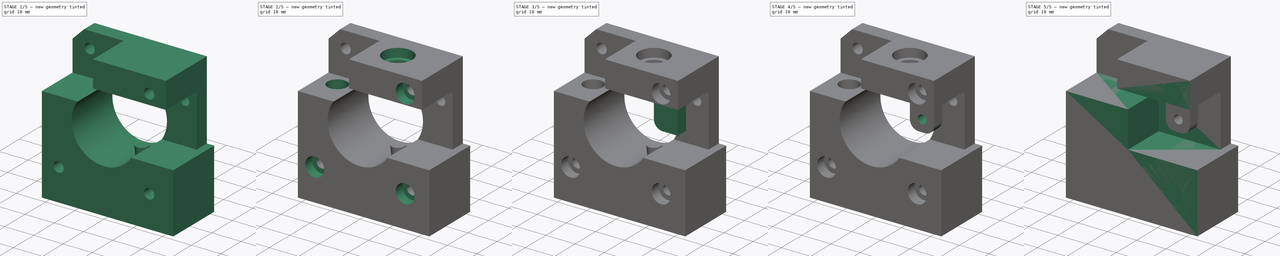
[diagram: build sequence overview — one tinted view per stage of 5, left to right]
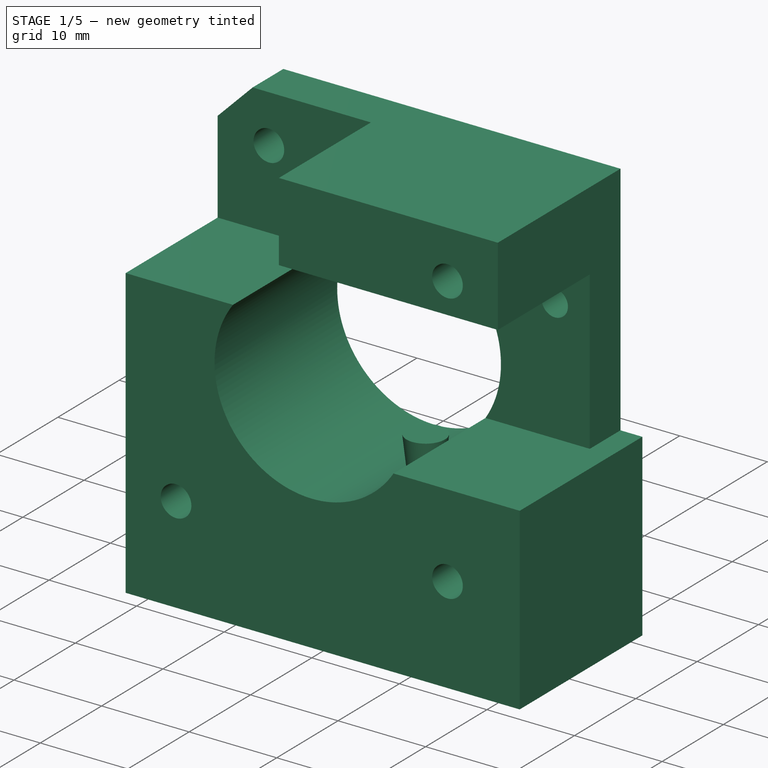
[diagram: stage 1 of 5 — iso view after this stage's code; geometry added in this stage tinted green]
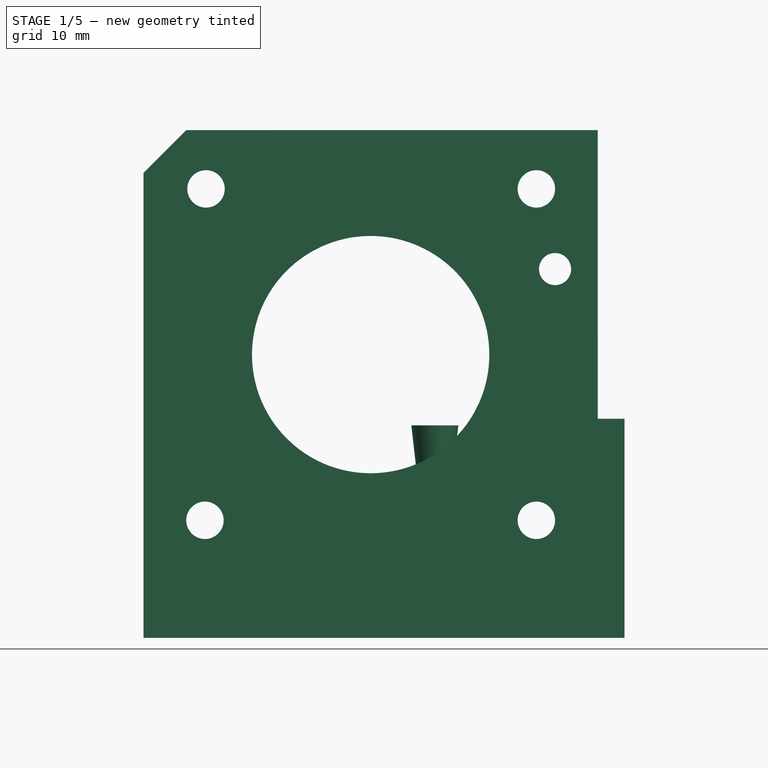
[diagram: stage 1 of 5 — front view after this stage's code; geometry added in this stage tinted green]
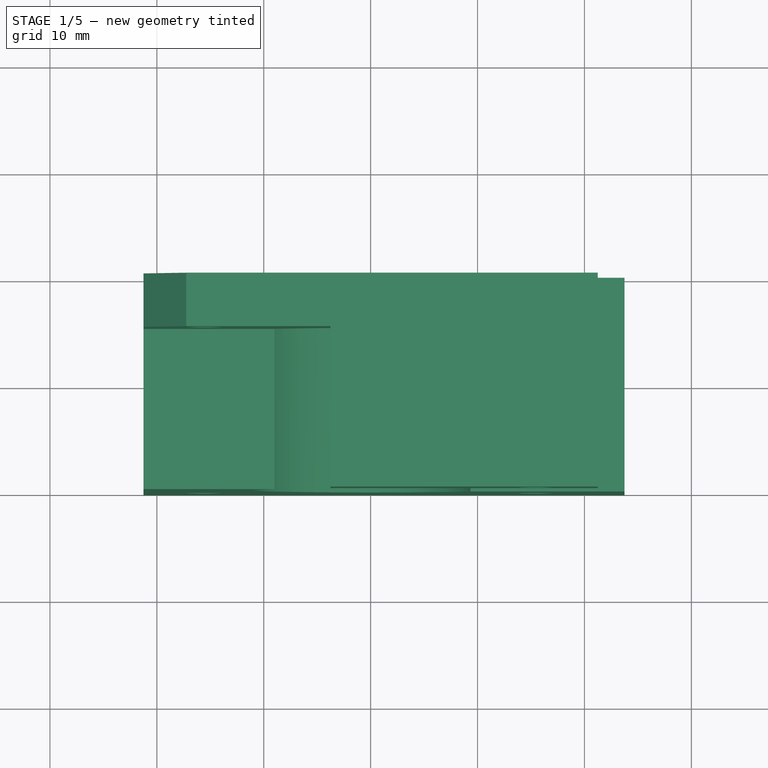
[diagram: stage 1 of 5 — top view after this stage's code; geometry added in this stage tinted green]
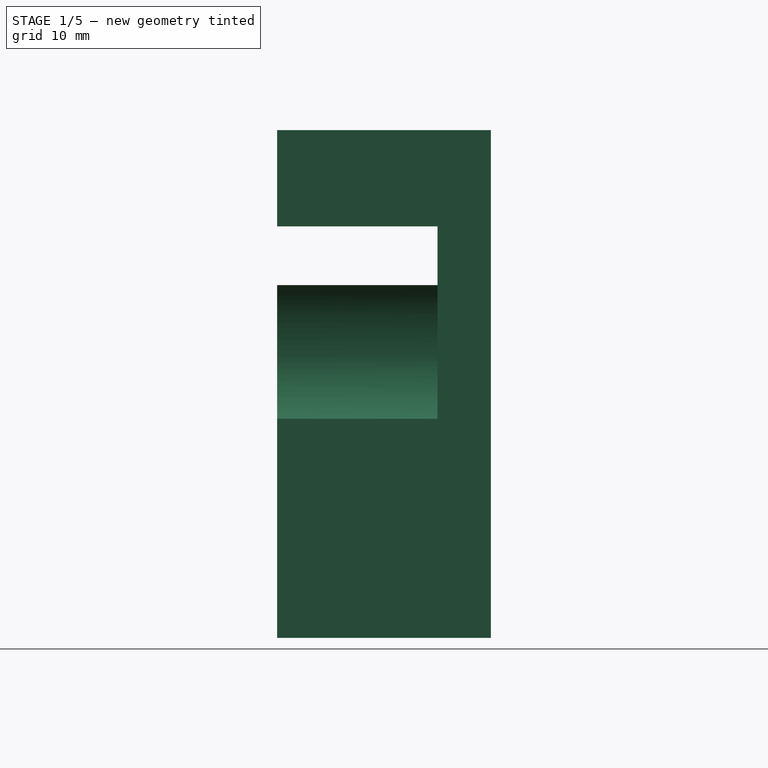
[diagram: stage 1 of 5 — right view after this stage's code; geometry added in this stage tinted green]
FCSTD DOCUMENT  (FreeCAD 0.15R4669 (Git))
Label: Extruder-body
License: CC-BY 3.0
LicenseURL: http://creativecommons.org/licenses/by/3.0/
objects: Sketcher::SketchObject×14, PartDesign::Pocket×13, PartDesign::Pad×2, PartDesign::Fillet×2, Part::Feature×1, Part::Cone×1, Part::Cut×1
note: 49 computed .brp shape members not serialized (recipe doc carries the construction recipe); baked Part::Feature solids carry a one-line shape summary decoded from their .brp

FEATURE [PartDesign::Pocket] Pocket002  label="cutout-3-motor-shaft"
  Length = 5
  Placement = pos=(0,0,0) rot=(1,0,0;1.5708rad)
  Type = 1
FEATURE [Sketcher::SketchObject] Sketch004  label="drill-lever-sketch"
  Placement = pos=(0,0,0) rot=(-1,0,0;1.5708rad)
  Support = -> Pocket002 [Face4]
  sketch-geometry (1):
    g0: Circle CenterX=17.25 CenterY=-34.5 CenterZ=0 NormalX=0 NormalY=0 NormalZ=1 Radius=1.5
  constraints (3):
    c: DistanceX(g-1,g0) = 17.25
    c: DistanceY(g-1,g0) = -34.5
    c: Radius(g0) = 1.5
FEATURE [PartDesign::Pocket] Pocket003  label="drill-lever"
  Length = 5
  Placement = pos=(0,0,0) rot=(1,0,0;1.5708rad)
  Sketch = -> Sketch004
  Type = 1
FEATURE [Sketcher::SketchObject] Sketch005  label="motor-drills-sketch"
  Placement = pos=(0,0,0) rot=(-1,0,0;1.5708rad)
  Support = -> Pocket003 [Face4]
  sketch-geometry (4):
    g0: Circle CenterX=-15.5 CenterY=-11 CenterZ=0 NormalX=0 NormalY=0 NormalZ=1 Radius=1.75
    g1: Circle CenterX=15.5 CenterY=-11 CenterZ=0 NormalX=0 NormalY=0 NormalZ=1 Radius=1.75
    g2: Circle CenterX=15.5 CenterY=-42 CenterZ=0 NormalX=0 NormalY=0 NormalZ=1 Radius=1.75
    g3: Circle CenterX=-15.4 CenterY=-42 CenterZ=0 NormalX=0 NormalY=0 NormalZ=1 Radius=1.75
  constraints (7):
    c: DistanceY(g-1,g0) = -11
    c: Equal(g1,g0)
    c: Symmetric(g1,g0,g-2)
    c: DistanceX(g0,g1) = 31
    c: Radius(g0) = 1.75
    c: Radius(g2) = 1.75
    c: Radius(g3) = 1.75
FEATURE [PartDesign::Pocket] Pocket004  label="motor-drills"
  Length = 5
  Placement = pos=(0,0,0) rot=(1,0,0;1.5708rad)
  Sketch = -> Sketch005
  Type = 1
FEATURE [Part::Feature] Fusion001  label="hotend final001"
  Placement = pos=(6.00997,-9.96459,9) rot=(1,0,0;3.14159rad)
  shape: bbox 25 x 25 x 75.51 mm, 79 faces (baked)
FEATURE [Part::Cone] Cone  label="Cono"
  Angle = 360
  Height = 10.765
  Placement = pos=(6.00217,-9.99368,9.11824) rot=(0,0,1;0rad)
  Radius1 = 0.975
  Radius2 = 2.2
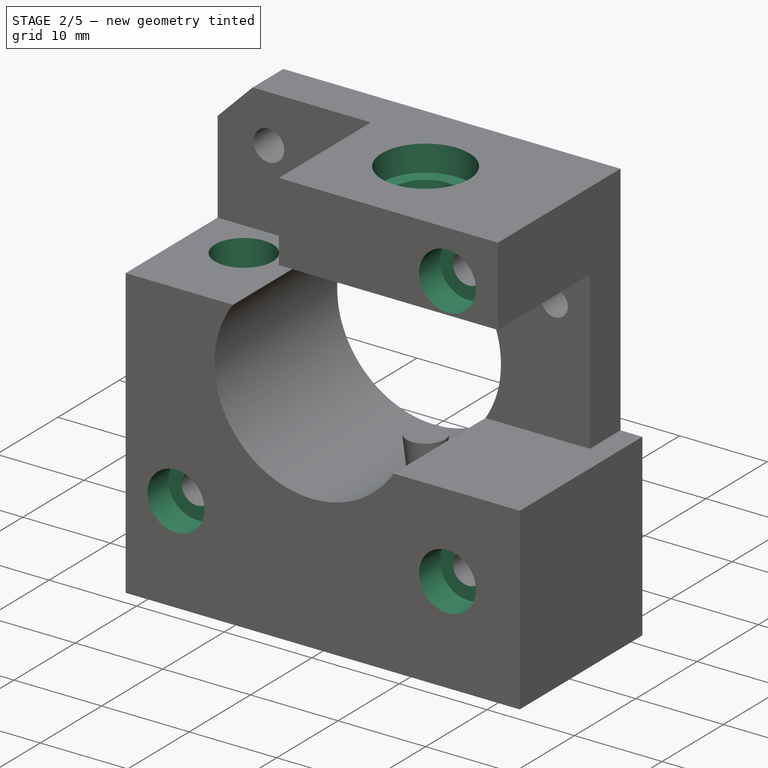
[diagram: stage 2 of 5 — iso view after this stage's code; geometry added in this stage tinted green]
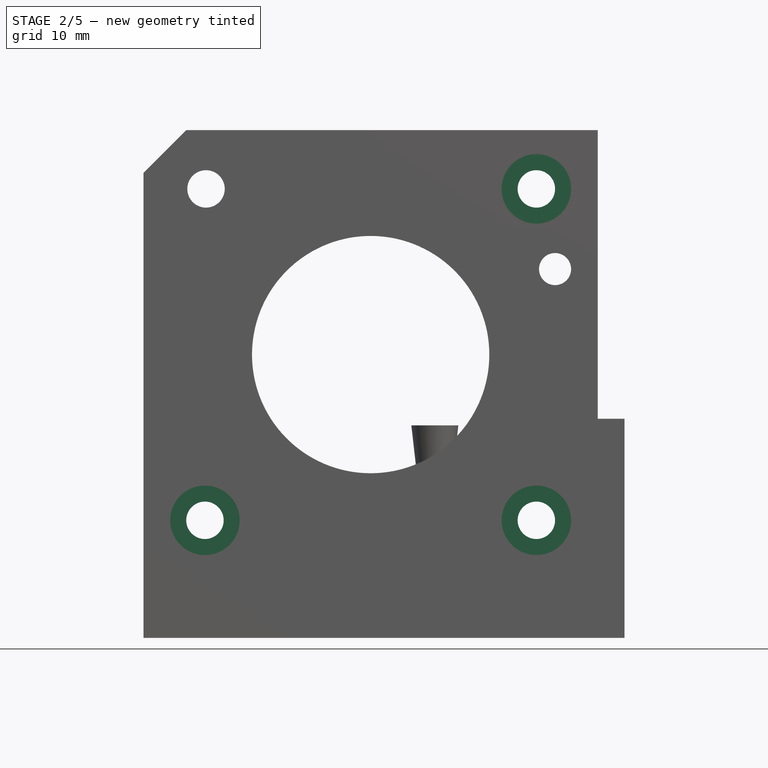
[diagram: stage 2 of 5 — front view after this stage's code; geometry added in this stage tinted green]
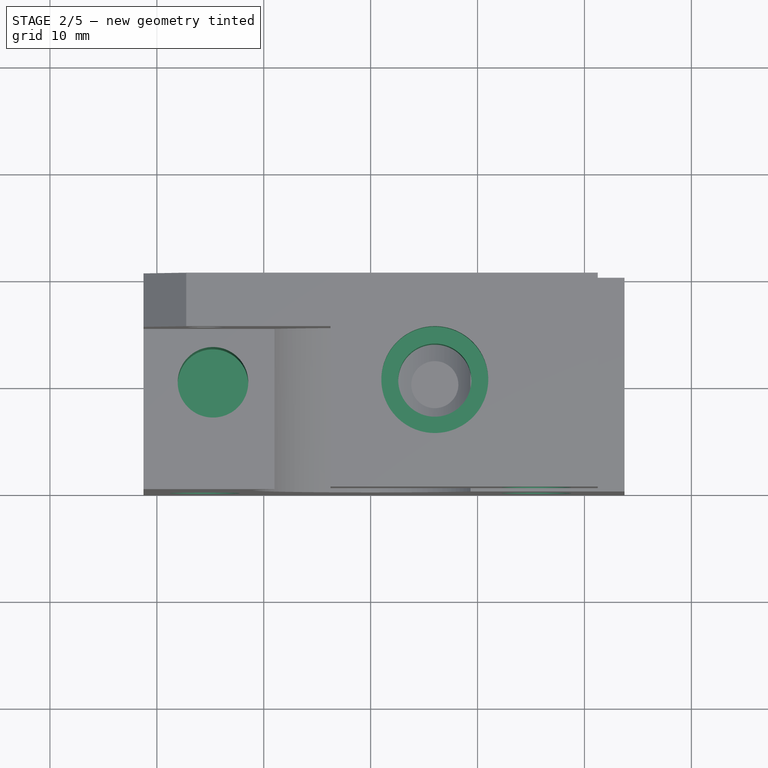
[diagram: stage 2 of 5 — top view after this stage's code; geometry added in this stage tinted green]
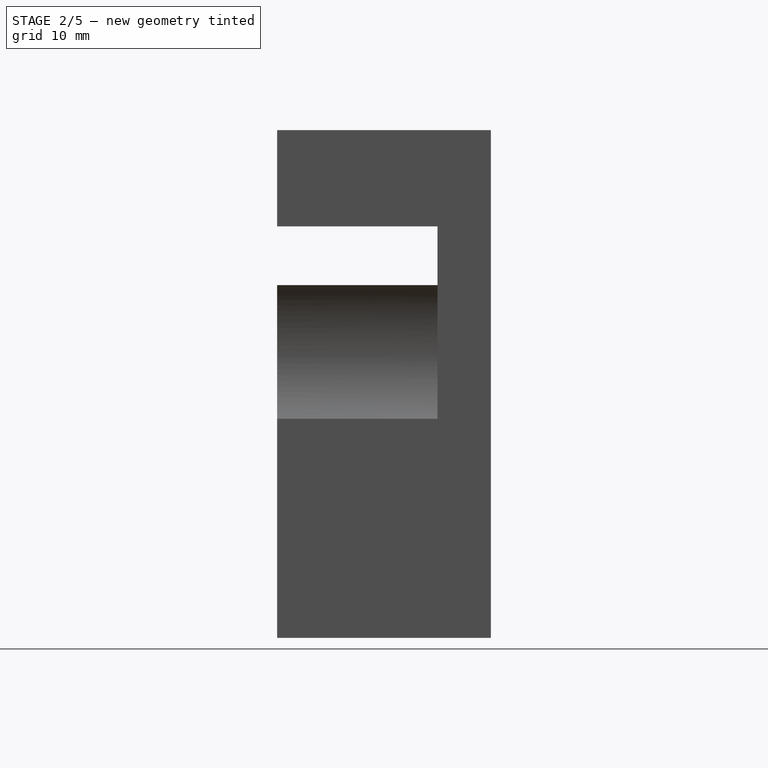
[diagram: stage 2 of 5 — right view after this stage's code; geometry added in this stage tinted green]
FEATURE [Sketcher::SketchObject] Sketch006  label="motor-drills-2-sketch"
  Placement = pos=(0,-20,0) rot=(1,0,0;1.5708rad)
  Support = -> Pocket004 [Face5]
  sketch-geometry (3):
    g0: Circle CenterX=-15.5 CenterY=11 CenterZ=0 NormalX=0 NormalY=0 NormalZ=1 Radius=3.25
    g1: Circle CenterX=15.5 CenterY=11 CenterZ=0 NormalX=0 NormalY=0 NormalZ=1 Radius=3.25
    g2: Circle CenterX=15.4996 CenterY=42 CenterZ=0 NormalX=0 NormalY=0 NormalZ=1 Radius=3.25
  constraints (4):
    c: Equal(g1,g0)
    c: Symmetric(g0,g1,g-2)
    c: Radius(g0) = 3.25
    c: Radius(g2) = 3.25
FEATURE [PartDesign::Pocket] Pocket005  label="motor-drills-2"
  Length = 3.4
  Placement = pos=(0,0,0) rot=(1,0,0;1.5708rad)
  Sketch = -> Sketch006
  Type = 0
FEATURE [Sketcher::SketchObject] Sketch010  label="drill-spring-sketch"
  Placement = pos=(0,0,33) rot=(0,0,1;3.14159rad)
  Support = -> Pocket005 [Face9]
  sketch-geometry (1):
    g0: Circle CenterX=14.75 CenterY=10 CenterZ=0 NormalX=0 NormalY=0 NormalZ=1 Radius=3.3
  constraints (3):
    c: Radius(g0) = 3.3
    c: DistanceX(g-1,g0) = 14.75
    c: DistanceY(g-1,g0) = 10
FEATURE [PartDesign::Pocket] Pocket006  label="drill spring "
  Length = 12.5
  Placement = pos=(0,0,0) rot=(1,0,0;1.5708rad)
  Sketch = -> Sketch010
  Type = 0
FEATURE [Sketcher::SketchObject] Sketch008  label="top-drill-1-sketch"
  Placement = pos=(0,0,47.5) rot=(0,0,1;3.14159rad)
  Support = -> Pocket006 [Face11]
  sketch-geometry (1):
    g0: Circle CenterX=-6 CenterY=10 CenterZ=0 NormalX=0 NormalY=0 NormalZ=1 Radius=5
  constraints (3):
    c: Radius(g0) = 5
    c: DistanceY(g-1,g0) = 10
    c: DistanceX(g-1,g0) = -6
FEATURE [PartDesign::Pocket] Pocket007  label="top drill 1"
  Length = 3
  Placement = pos=(0,0,0) rot=(1,0,0;1.5708rad)
  Sketch = -> Sketch008
  Type = 0
FEATURE [Sketcher::SketchObject] Sketch013
  Placement = pos=(0,0,44.5) rot=(0,0,1;3.14159rad)
  Support = -> Pocket007 [Face30]
  sketch-geometry (1):
    g0: Circle CenterX=-6 CenterY=10 CenterZ=0 NormalX=0 NormalY=0 NormalZ=1 Radius=3.42075
  constraints (2):
    c: DistanceX(g-2,g0) = -6
    c: DistanceY(g-1,g0) = 10
FEATURE [PartDesign::Pocket] Pocket008  label="top drill 2"
  Length = 5
  Placement = pos=(0,0,0) rot=(1,0,0;1.5708rad)
  Sketch = -> Sketch013
  Type = 2
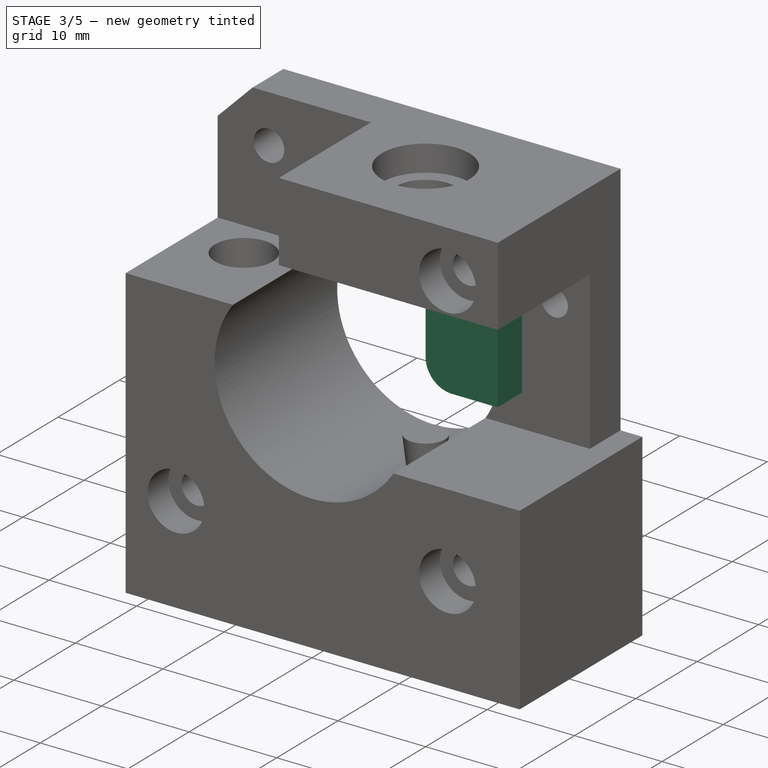
[diagram: stage 3 of 5 — iso view after this stage's code; geometry added in this stage tinted green]
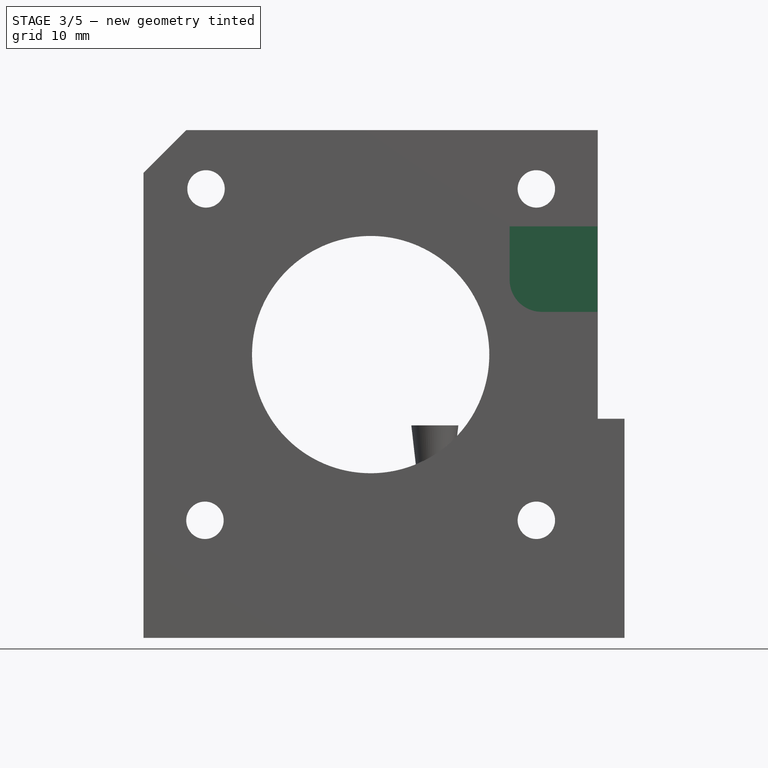
[diagram: stage 3 of 5 — front view after this stage's code; geometry added in this stage tinted green]
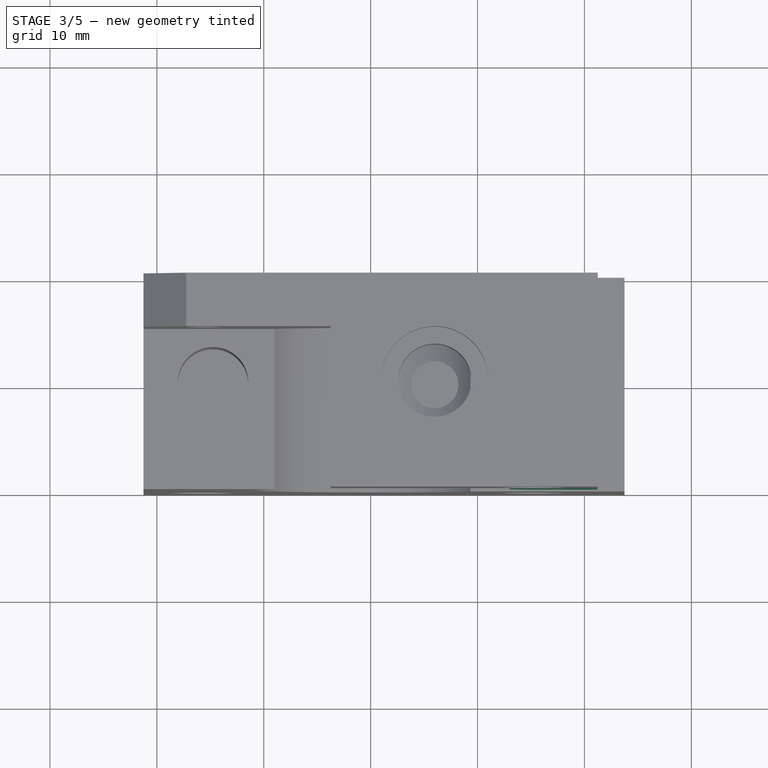
[diagram: stage 3 of 5 — top view after this stage's code; geometry added in this stage tinted green]
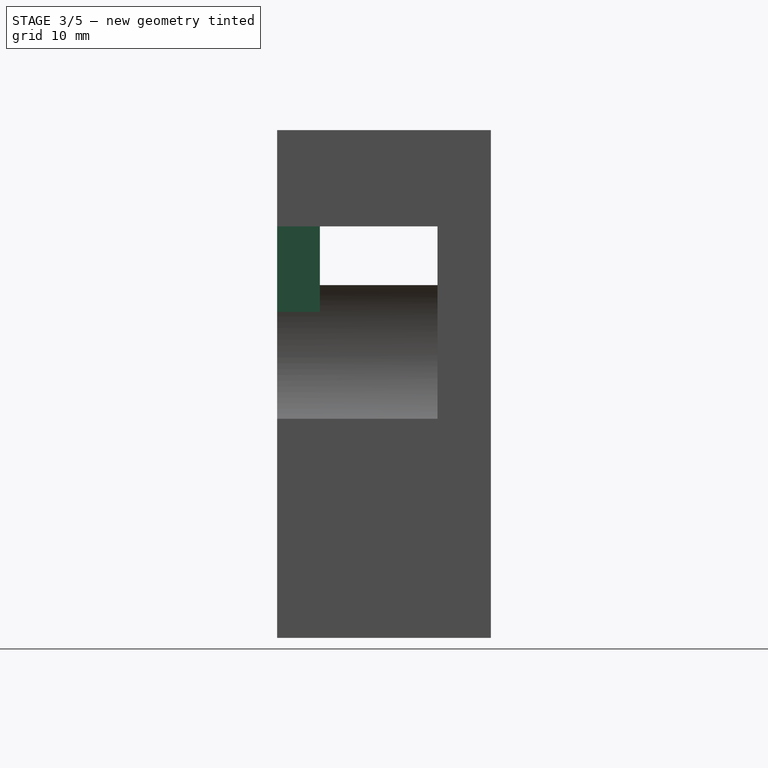
[diagram: stage 3 of 5 — right view after this stage's code; geometry added in this stage tinted green]
FEATURE [Sketcher::SketchObject] Sketch011  label="hotend-drill-sketch"
  Placement = pos=(0,0,0) rot=(1,0,0;3.14159rad)
  Support = -> Pocket008 [Face1]
  sketch-geometry (1):
    g0: Circle CenterX=6 CenterY=10 CenterZ=0 NormalX=0 NormalY=0 NormalZ=1 Radius=0.975
  constraints (3):
    c: Radius(g0) = 0.975
    c: DistanceY(g-1,g0) = 10
    c: DistanceX(g-1,g0) = 6
FEATURE [PartDesign::Pocket] Pocket009  label="hotend-drill"
  Length = 5
  Placement = pos=(0,0,0) rot=(1,0,0;1.5708rad)
  Sketch = -> Sketch011
  Type = 2
FEATURE [Sketcher::SketchObject] Sketch014
  Placement = pos=(0,0,38.5) rot=(1,0,0;3.14159rad)
  Support = -> Pocket009 [Face22]
  sketch-geometry (4):
    g0: LineSegment StartX=13 StartY=20 StartZ=0 EndX=21.2131 EndY=20 EndZ=0
    g1: LineSegment StartX=21.2131 StartY=20 StartZ=0 EndX=21.2131 EndY=16 EndZ=0
    g2: LineSegment StartX=21.2131 StartY=16 StartZ=0 EndX=13 EndY=16 EndZ=0
    g3: LineSegment StartX=13 StartY=16 StartZ=0 EndX=13 EndY=20 EndZ=0
  constraints (8):
    c: Coincident(g0,g1)
    c: Coincident(g1,g2)
    c: Coincident(g2,g3)
    c: Coincident(g3,g0)
    c: Horizontal(g0)
    c: Horizontal(g2)
    c: Vertical(g1)
    c: Vertical(g3)
FEATURE [PartDesign::Pad] Pad001  label="lever-support"
  Length = 8
  Length2 = 100
  Placement = pos=(0,0,0) rot=(1,0,0;1.5708rad)
  Sketch = -> Sketch014
  Type = 0
FEATURE [PartDesign::Fillet] Fillet
  Base = -> Pad001 [Edge4]
  Placement = pos=(0,0,0) rot=(1,0,0;1.5708rad)
  Radius = 3
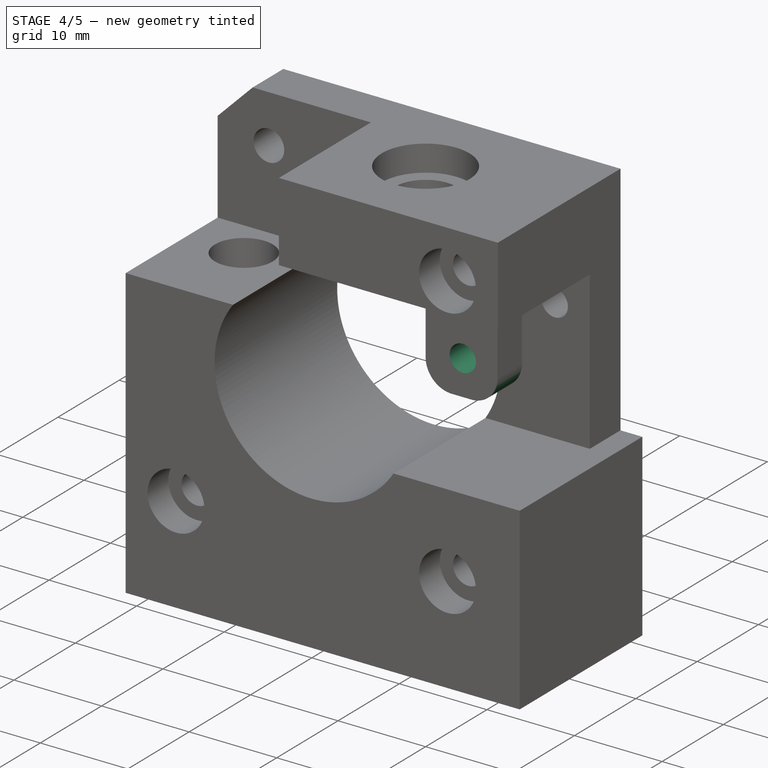
[diagram: stage 4 of 5 — iso view after this stage's code; geometry added in this stage tinted green]
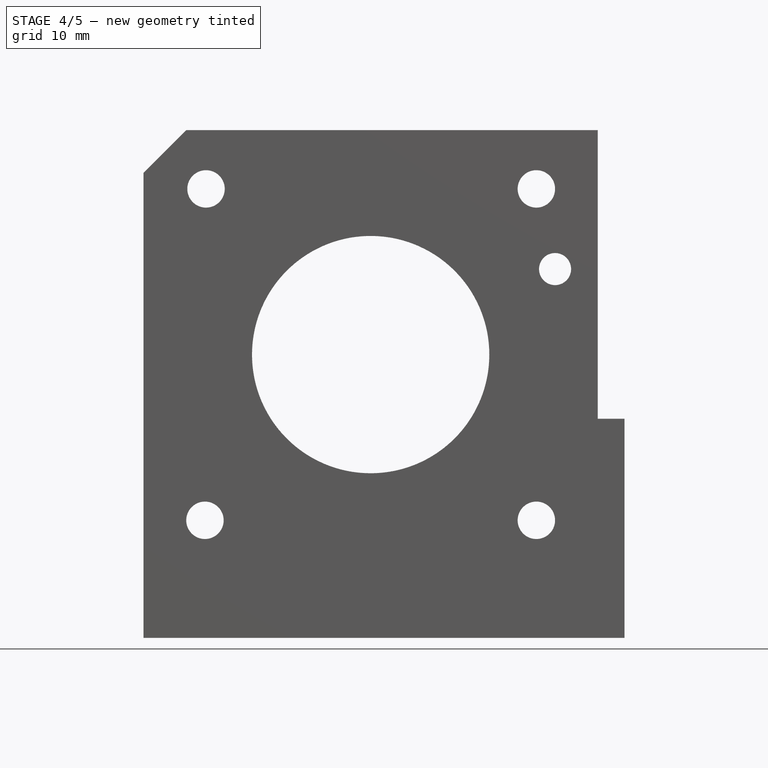
[diagram: stage 4 of 5 — front view after this stage's code; geometry added in this stage tinted green]
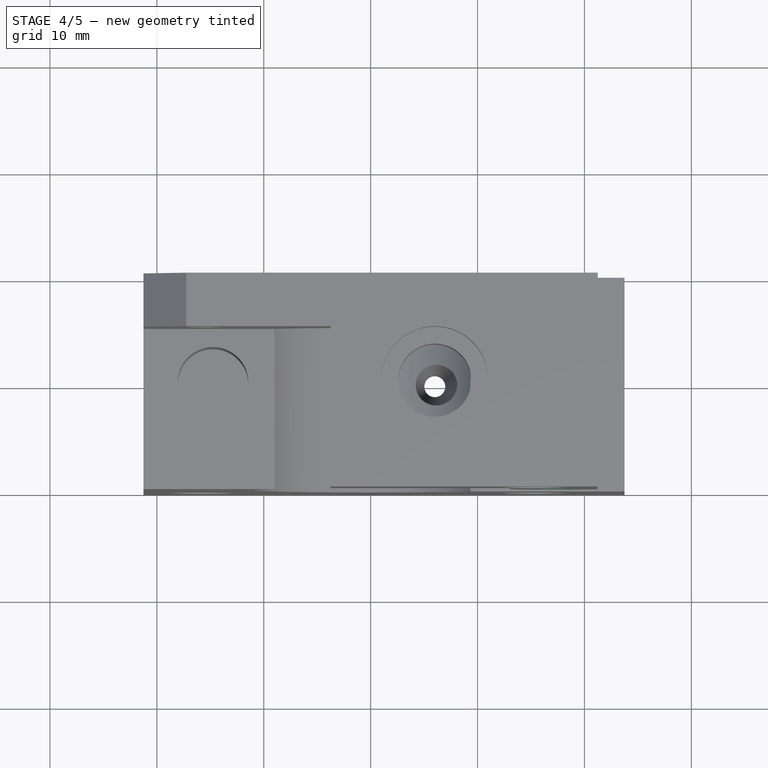
[diagram: stage 4 of 5 — top view after this stage's code; geometry added in this stage tinted green]
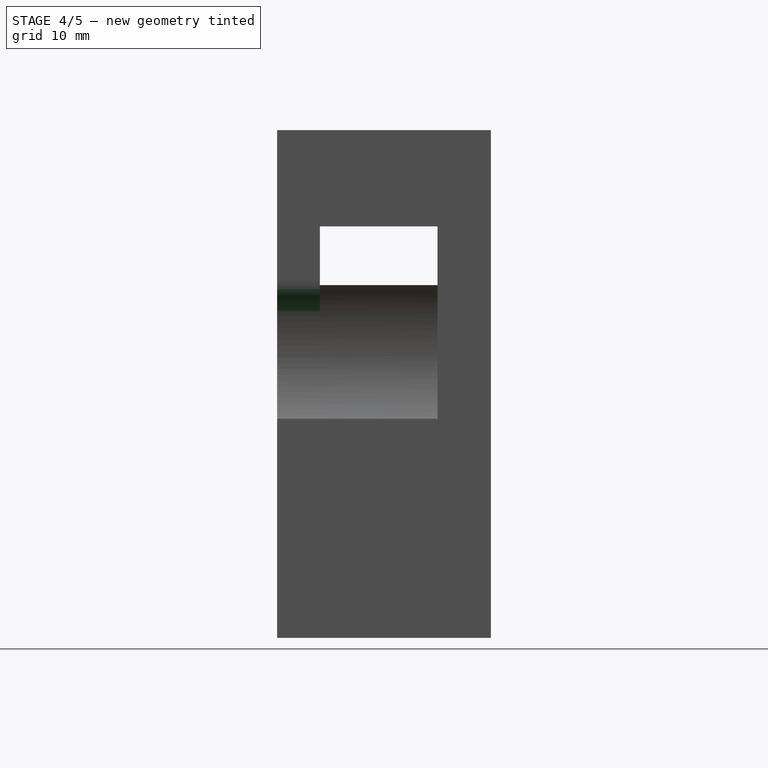
[diagram: stage 4 of 5 — right view after this stage's code; geometry added in this stage tinted green]
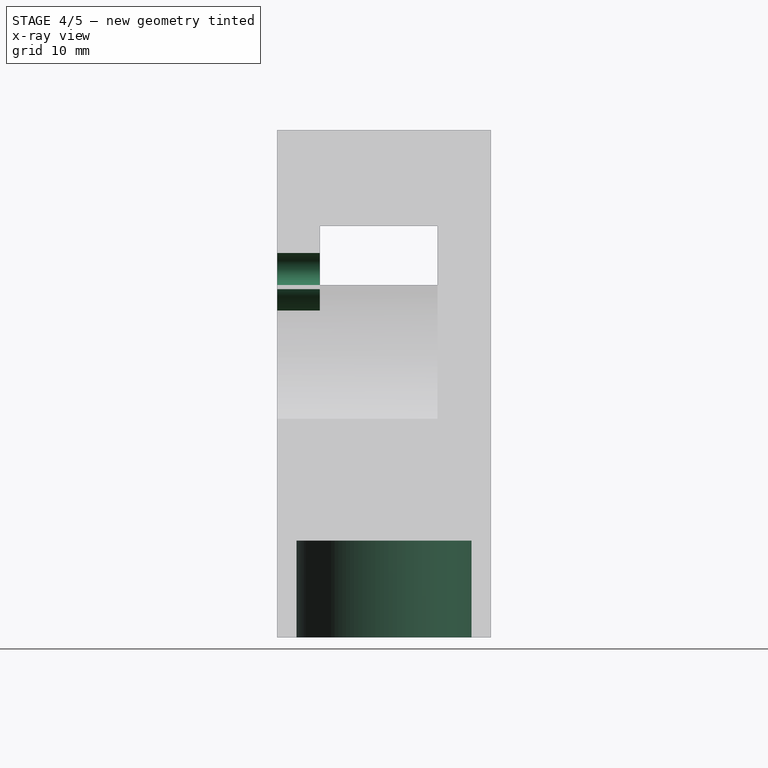
[diagram: stage 4 of 5 — x-ray composite at the right view; earlier geometry ghosted, this stage's added geometry solid]
FEATURE [PartDesign::Fillet] Fillet001
  Base = -> Fillet [Edge3]
  Placement = pos=(0,0,0) rot=(1,0,0;1.5708rad)
  Radius = 3
FEATURE [Sketcher::SketchObject] Sketch015  label="drill-lever-sketch001"
  Placement = pos=(0,-20,0) rot=(1,0,0;1.5708rad)
  Support = -> Fillet001 [Face2]
  sketch-geometry (1):
    g0: Circle CenterX=17.25 CenterY=34.5 CenterZ=0 NormalX=0 NormalY=0 NormalZ=1 Radius=1.5
  constraints (3):
    c: DistanceX(g-1,g0) = 17.25
    c: DistanceY(g-1,g0) = 34.5
    c: Radius(g0) = 1.5
FEATURE [PartDesign::Pocket] Pocket010  label="lever-support-drill"
  Length = 5
  Placement = pos=(0,0,0) rot=(1,0,0;1.5708rad)
  Sketch = -> Sketch015
  Type = 2
FEATURE [Part::Cut] Cut
  Base = -> Pocket010
  Tool = -> Cone
FEATURE [Sketcher::SketchObject] Sketch016
  Placement = pos=(0,0,0) rot=(1,0,0;3.14159rad)
  Support = -> Cut [Face28]
  sketch-geometry (1):
    g0: Circle CenterX=6 CenterY=10 CenterZ=0 NormalX=0 NormalY=0 NormalZ=1 Radius=8.2
  constraints (3):
    c: Radius(g0) = 8.2
    c: DistanceY(g-1,g0) = 10
    c: DistanceX(g-2,g0) = 6
FEATURE [PartDesign::Pocket] Pocket011
  Length = 9.1
  Sketch = -> Sketch016
  Type = 0
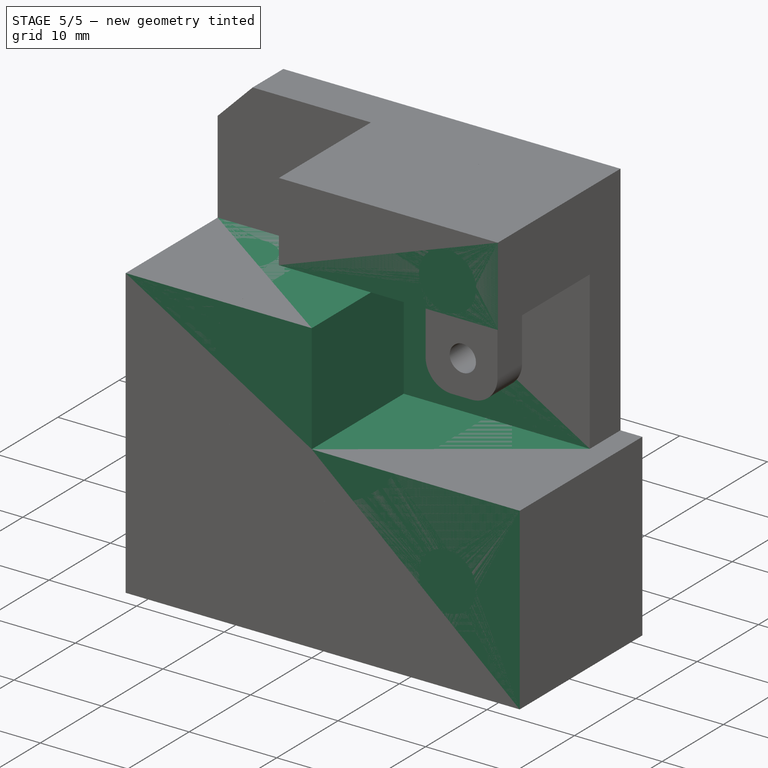
[diagram: stage 5 of 5 — iso view after this stage's code; geometry added in this stage tinted green]
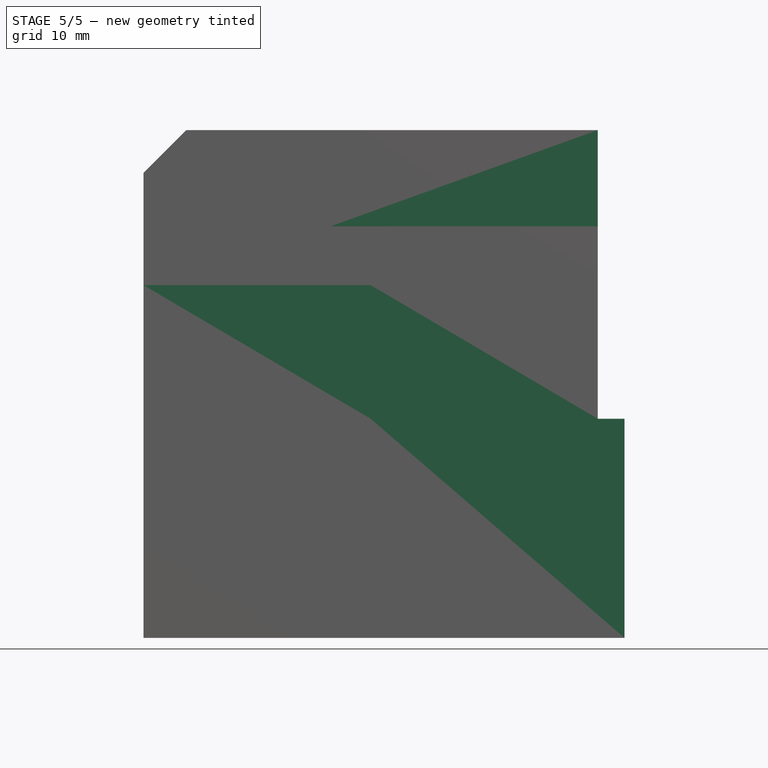
[diagram: stage 5 of 5 — front view after this stage's code; geometry added in this stage tinted green]
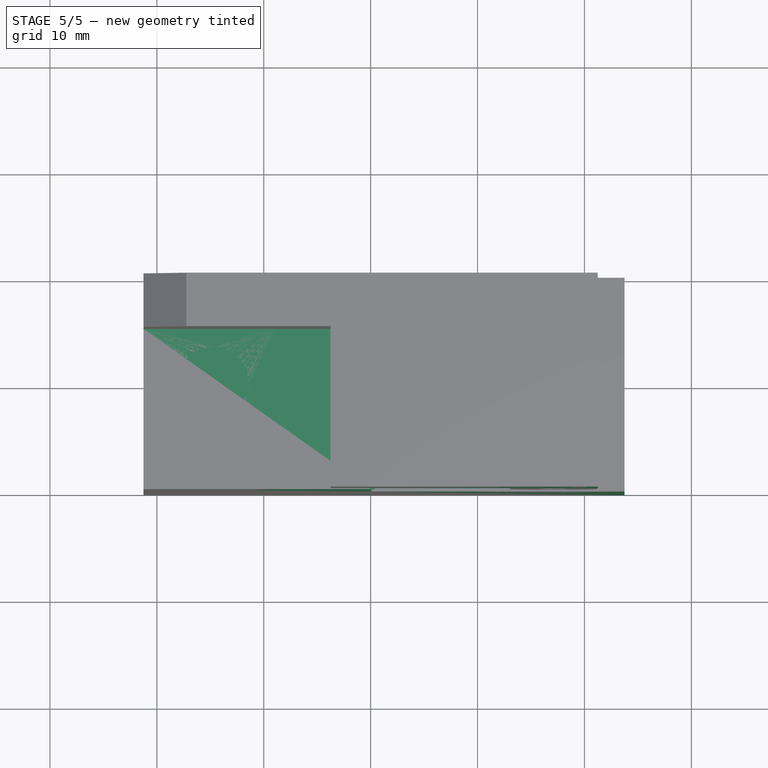
[diagram: stage 5 of 5 — top view after this stage's code; geometry added in this stage tinted green]
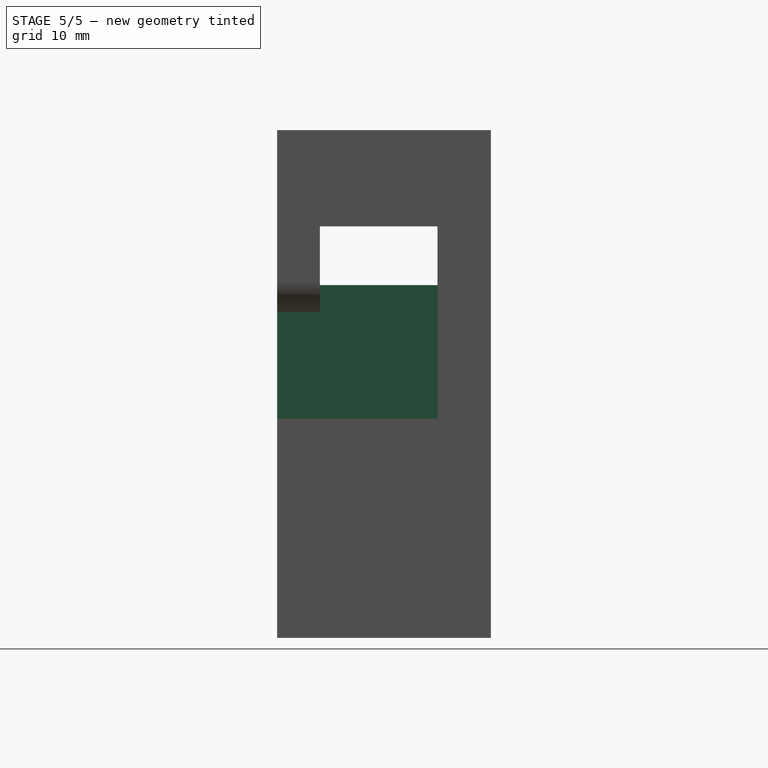
[diagram: stage 5 of 5 — right view after this stage's code; geometry added in this stage tinted green]
FEATURE [Sketcher::SketchObject] Sketch  label="main-body-sketch"
  Placement = pos=(0,0,0) rot=(1,0,0;1.5708rad)
  sketch-geometry (6):
    g0: LineSegment StartX=23.7483 StartY=0 StartZ=0 EndX=-21.2517 EndY=0 EndZ=0
    g1: LineSegment StartX=-21.2517 StartY=0 StartZ=0 EndX=-21.2517 EndY=43.5 EndZ=0
    g2: LineSegment StartX=-21.2517 StartY=43.5 StartZ=0 EndX=-17.2517 EndY=47.5 EndZ=0
    g3: LineSegment StartX=-17.2517 StartY=47.5 StartZ=0 EndX=23.7483 EndY=47.5 EndZ=0
    g4: LineSegment StartX=23.7483 StartY=47.5 StartZ=0 EndX=23.7483 EndY=0 EndZ=0
    g5: LineSegment [constr] StartX=-21.2517 StartY=43.5 StartZ=0 EndX=-17.2517 EndY=43.5 EndZ=0
  constraints (17):
    c: Horizontal(g0)
    c: Coincident(g0,g1)
    c: Vertical(g1)
    c: Coincident(g1,g2)
    c: Coincident(g2,g3)
    c: Horizontal(g3)
    c: Coincident(g3,g4)
    c: Coincident(g4,g0)
    c: Vertical(g4)
    c: PointOnObject(g0,g-1)
    c: Horizontal(g5)
    c: Coincident(g5,g1)
    c: DistanceX(g5) = 4
    c: Angle(g5,g2) = 0.785398
    c: DistanceY(g5,g2) = 4
    c: DistanceY(g2,g0) = -47.5
    c: DistanceX(g0) = -45
FEATURE [PartDesign::Pad] Pad  label="main-body"
  Length = 20
  Length2 = 100
  Placement = pos=(0,0,0) rot=(1,0,0;1.5708rad)
  Sketch = -> Sketch
  Type = 0
FEATURE [Sketcher::SketchObject] Sketch001  label="cutout-1-sketch"
  ExternalGeometry = -> [Pad]
  Placement = pos=(0,-20,0) rot=(1,0,0;1.5708rad)
  Support = -> Pad [Face7]
  sketch-geometry (4):
    g0: LineSegment StartX=21.2483 StartY=47.5 StartZ=0 EndX=23.7483 EndY=47.5 EndZ=0
    g1: LineSegment StartX=23.7483 StartY=47.5 StartZ=0 EndX=23.7483 EndY=20.5 EndZ=0
    g2: LineSegment StartX=23.7483 StartY=20.5 StartZ=0 EndX=21.2483 EndY=20.5 EndZ=0
    g3: LineSegment StartX=21.2483 StartY=20.5 StartZ=0 EndX=21.2483 EndY=47.5 EndZ=0
  constraints (11):
    c: Coincident(g0,g1)
    c: Coincident(g1,g2)
    c: Coincident(g2,g3)
    c: Coincident(g3,g0)
    c: Horizontal(g0)
    c: Horizontal(g2)
    c: Vertical(g1)
    c: Vertical(g3)
    c: Coincident(g0,g-4)
    c: DistanceY(g3) = 27
    c: DistanceX(g2) = -2.5
FEATURE [PartDesign::Pocket] Pocket  label="cutout-1"
  Length = 5
  Placement = pos=(0,0,0) rot=(1,0,0;1.5708rad)
  Sketch = -> Sketch001
  Type = 1
FEATURE [Sketcher::SketchObject] Sketch002  label="cutout-2-sketch"
  ExternalGeometry = -> [Pocket]
  Placement = pos=(0,-20,0) rot=(1,0,0;1.5708rad)
  Support = -> Pocket [Face5]
  sketch-geometry (8):
    g0: LineSegment StartX=21.2483 StartY=20.5 StartZ=0 EndX=0 EndY=20.5 EndZ=0
    g1: LineSegment StartX=0 StartY=20.5 StartZ=0 EndX=0 EndY=33 EndZ=0
    g2: LineSegment StartX=0 StartY=33 StartZ=0 EndX=-21.2517 EndY=33 EndZ=0
    g3: LineSegment StartX=-21.2517 StartY=33 StartZ=0 EndX=-21.2517 EndY=47.5 EndZ=0
    g4: LineSegment StartX=-21.2517 StartY=47.5 StartZ=0 EndX=-3.75167 EndY=47.5 EndZ=0
    g5: LineSegment StartX=-3.75167 StartY=47.5 StartZ=0 EndX=-3.75167 EndY=38.5 EndZ=0
    g6: LineSegment StartX=-3.75167 StartY=38.5 StartZ=0 EndX=21.2483 EndY=38.5 EndZ=0
    g7: LineSegment StartX=21.2483 StartY=38.5 StartZ=0 EndX=21.2483 EndY=20.5 EndZ=0
  constraints (23):
    c: Horizontal(g0)
    c: Coincident(g0,g1)
    c: Vertical(g1)
    c: Coincident(g1,g2)
    c: Horizontal(g2)
    c: Coincident(g2,g3)
    c: Vertical(g3)
    c: Coincident(g3,g4)
    c: Horizontal(g4)
    c: Coincident(g4,g5)
    c: Vertical(g5)
    c: Coincident(g5,g6)
    c: Horizontal(g6)
    c: Coincident(g6,g7)
    c: Coincident(g7,g0)
    c: Vertical(g7)
    c: Coincident(g0,g-5)
    c: PointOnObject(g0,g-2)
    c: PointOnObject(g3,g-4)
    c: PointOnObject(g3,g-3)
    c: DistanceY(g3) = 14.5
    c: DistanceY(g5) = -9
    c: DistanceX(g6) = 25
FEATURE [PartDesign::Pocket] Pocket001  label="cutout-2"
  Length = 15
  Placement = pos=(0,0,0) rot=(1,0,0;1.5708rad)
  Sketch = -> Sketch002
  Type = 0
FEATURE [Sketcher::SketchObject] Sketch017
  Placement = pos=(0,-20,0) rot=(1,0,0;1.5708rad)
  Support = -> Pocket011 [Face33]
  sketch-geometry (3):
    g0: Circle CenterX=-1.6 CenterY=3.5 CenterZ=0 NormalX=0 NormalY=0 NormalZ=1 Radius=1.55
    g1: Circle CenterX=13.6 CenterY=3.5 CenterZ=0 NormalX=0 NormalY=0 NormalZ=1 Radius=1.55
    g2: LineSegment [constr] StartX=6 StartY=5.2 StartZ=0 EndX=6 EndY=0 EndZ=0
  constraints (9):
    c: Radius(g0) = 1.55
    c: Equal(g1,g0)
    c: Vertical(g2)
    c: Distance(g2) = 5.2
    c: PointOnObject(g2,g-1)
    c: DistanceY(g-1,g0) = 3.5
    c: DistanceY(g-1,g1) = 3.5
    c: Symmetric(g0,g1,g2)
    c: Distance(g0,g2) = 7.6
FEATURE [PartDesign::Pocket] Pocket012
  Length = 5
  Sketch = -> Sketch017
  Type = 1
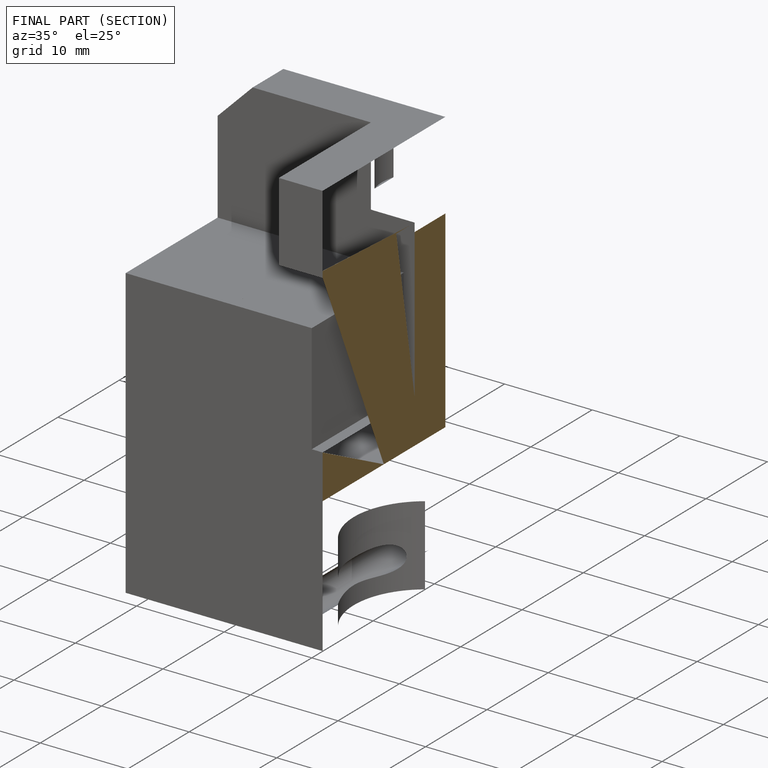
[diagram: finished part — half-section view (interior)]
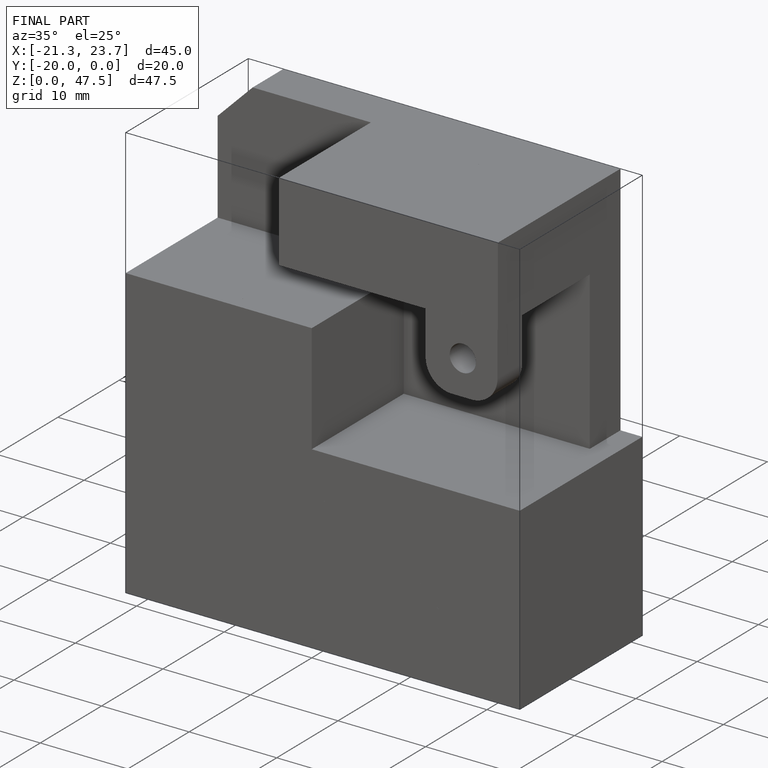
[diagram: finished part — iso view with bounding-box wireframe]
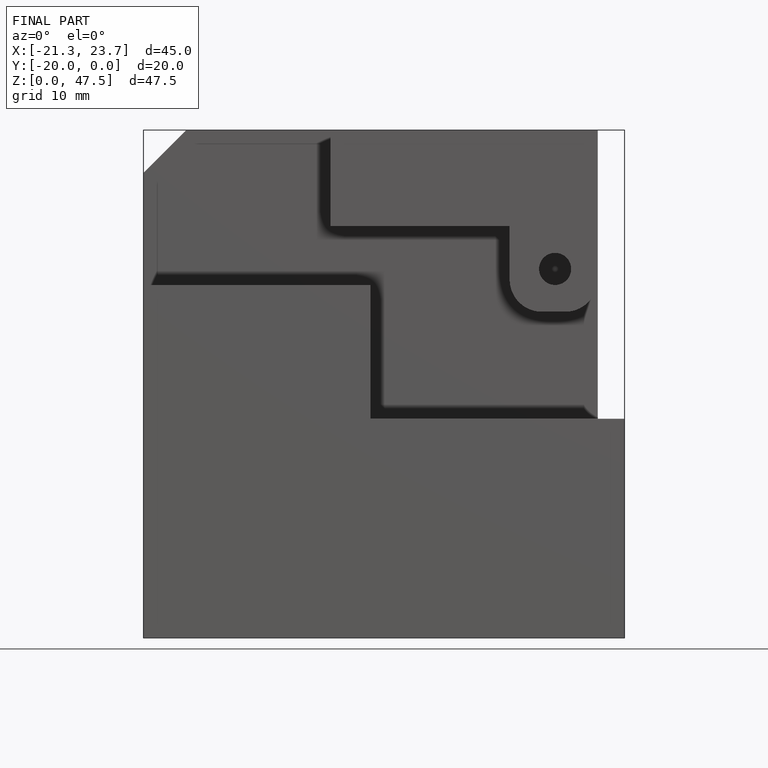
[diagram: finished part — front view with bounding-box wireframe]
